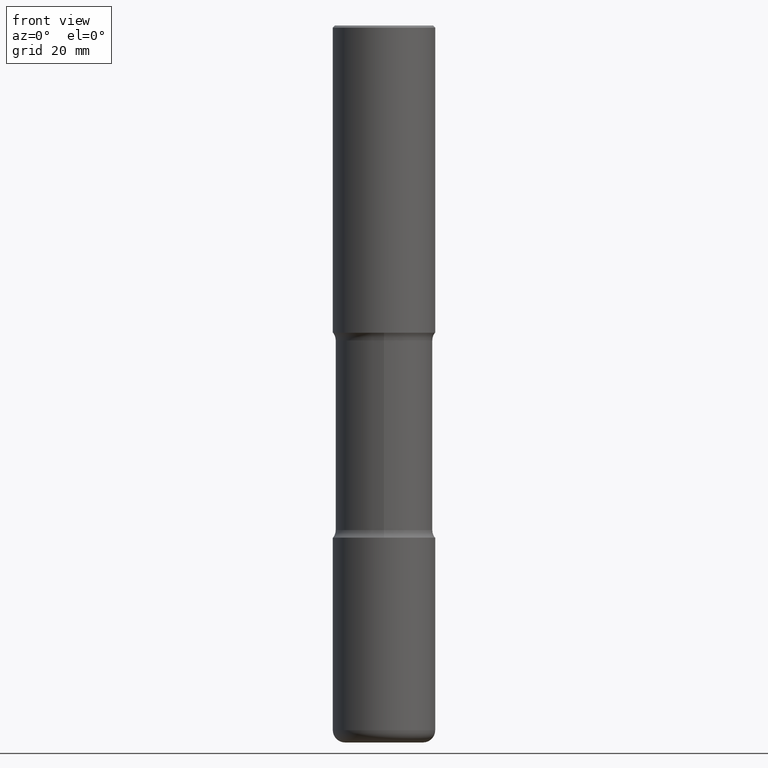
[diagram: clean part render]
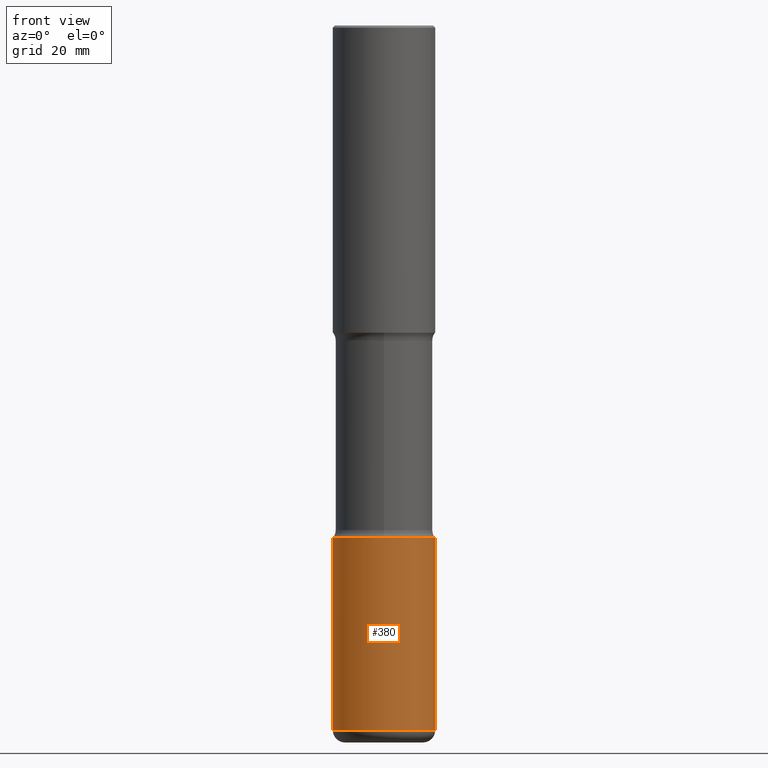
[diagram: same view with one face highlighted and labeled with its STEP entity id]
A machine part, front view. The second image highlights one B-rep face of the part: STEP entity #380.
In plain terms, the highlighted cylindrical surface (partial cylindrical patch) has radius 12.7 mm, axis along (-0, 0, 1).
Its self-contained STEP definition (entity closure, byte-faithful):
#17 = DIRECTION ( 'NONE',  ( -2.445468806185136597E-29, 3.491481338843145583E-15, 1.000000000000000000 ) ) ;
#18 = EDGE_CURVE ( 'NONE', #309, #529, #423, .T. ) ;
#26 = VERTEX_POINT ( 'NONE', #177 ) ;
#29 = CIRCLE ( 'NONE', #460, 0.5000000000000002220 ) ;
#44 = DIRECTION ( 'NONE',  ( -2.445468806185136597E-29, 3.491481338843145583E-15, 1.000000000000000000 ) ) ;
#50 = VERTEX_POINT ( 'NONE', #556 ) ;
#128 = DIRECTION ( 'NONE',  ( 1.000000000000000000, -6.982962677686264344E-15, 0.000000000000000000 ) ) ;
#134 = CARTESIAN_POINT ( 'NONE',  ( 0.000000000000000000, 0.000000000000000000, 0.000000000000000000 ) ) ;
#141 = LINE ( 'NONE', #327, #410 ) ;
#149 = LINE ( 'NONE', #368, #427 ) ;
#164 = AXIS2_PLACEMENT_3D ( 'NONE', #476, #44, #128 ) ;
#177 = CARTESIAN_POINT ( 'NONE',  ( 0.5000000000000002220, -2.094888803305886009E-14, -4.999999999999999112 ) ) ;
#193 = EDGE_CURVE ( 'NONE', #309, #50, #149, .T. ) ;
#200 = CARTESIAN_POINT ( 'NONE',  ( 0.5000000000000004441, -2.751287295008398172E-14, -6.880000000000000782 ) ) ;
#206 = DIRECTION ( 'NONE',  ( 1.000000000000000000, -6.982962677686266711E-15, 4.876176775795935232E-29 ) ) ;
#211 = ORIENTED_EDGE ( 'NONE', *, *, #304, .F. ) ;
#263 = AXIS2_PLACEMENT_3D ( 'NONE', #134, #431, #206 ) ;
#272 = ORIENTED_EDGE ( 'NONE', *, *, #193, .F. ) ;
#304 = EDGE_CURVE ( 'NONE', #50, #26, #29, .T. ) ;
#309 = VERTEX_POINT ( 'NONE', #490 ) ;
#327 = CARTESIAN_POINT ( 'NONE',  ( 0.5000000000000004441, -3.491481338843136511E-15, 2.438088387897969858E-29 ) ) ;
#346 = ORIENTED_EDGE ( 'NONE', *, *, #18, .T. ) ;
#368 = CARTESIAN_POINT ( 'NONE',  ( -0.5000000000000004441, 3.552713678800504085E-15, -2.459467545127455133E-29 ) ) ;
#376 = DIRECTION ( 'NONE',  ( 1.000000000000000000, -6.982962677686263555E-15, 0.000000000000000000 ) ) ;
#380 = ADVANCED_FACE ( 'NONE', ( #531 ), #443, .T. ) ;
#410 = VECTOR ( 'NONE', #501, 39.37007874015748143 ) ;
#422 = CARTESIAN_POINT ( 'NONE',  ( 1.222734403092568074E-28, -1.745740669421572673E-14, -4.999999999999999112 ) ) ;
#423 = CIRCLE ( 'NONE', #164, 0.5000000000000004441 ) ;
#427 = VECTOR ( 'NONE', #461, 39.37007874015748143 ) ;
#431 = DIRECTION ( 'NONE',  ( -2.445468806185136597E-29, 3.491481338843145583E-15, 1.000000000000000000 ) ) ;
#433 = EDGE_LOOP ( 'NONE', ( #272, #346, #436, #211 ) ) ;
#434 = EDGE_CURVE ( 'NONE', #529, #26, #141, .T. ) ;
#436 = ORIENTED_EDGE ( 'NONE', *, *, #434, .T. ) ;
#443 = CYLINDRICAL_SURFACE ( 'NONE', #263, 0.5000000000000004441 ) ;
#460 = AXIS2_PLACEMENT_3D ( 'NONE', #422, #17, #376 ) ;
#461 = DIRECTION ( 'NONE',  ( -2.445468806185136877E-29, 3.491481338843145188E-15, 1.000000000000000000 ) ) ;
#476 = CARTESIAN_POINT ( 'NONE',  ( 1.682482538655374212E-28, -2.402139161124084521E-14, -6.880000000000000782 ) ) ;
#490 = CARTESIAN_POINT ( 'NONE',  ( -0.5000000000000004441, -2.046867793244034428E-14, -6.880000000000000782 ) ) ;
#501 = DIRECTION ( 'NONE',  ( -2.445468806185136877E-29, 3.491481338843145188E-15, 1.000000000000000000 ) ) ;
#529 = VERTEX_POINT ( 'NONE', #200 ) ;
#531 = FACE_OUTER_BOUND ( 'NONE', #433, .T. ) ;
#556 = CARTESIAN_POINT ( 'NONE',  ( -0.5000000000000002220, -1.718668547392778188E-14, -4.999999999999999112 ) ) ;